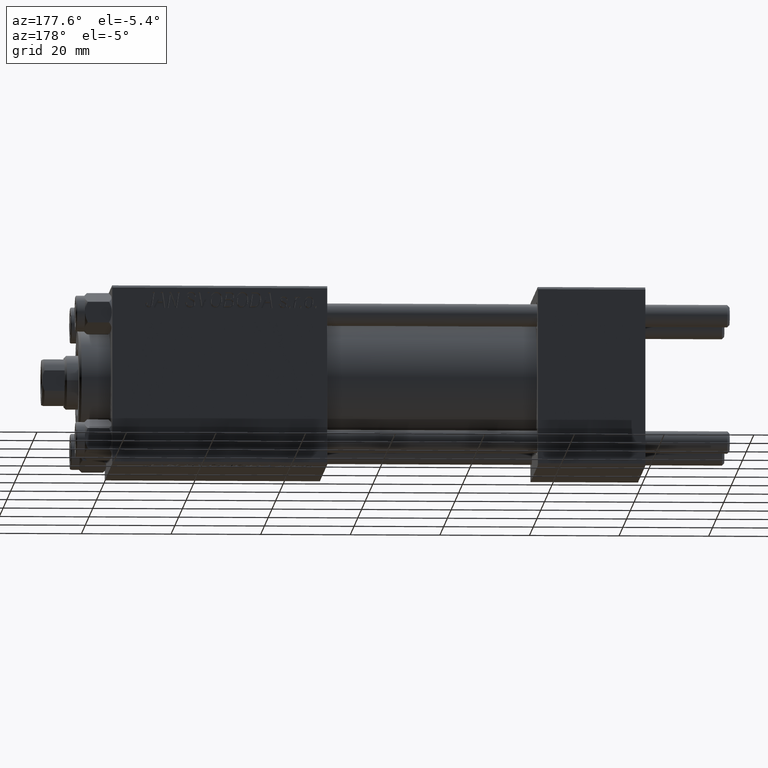
[diagram: clean part render]
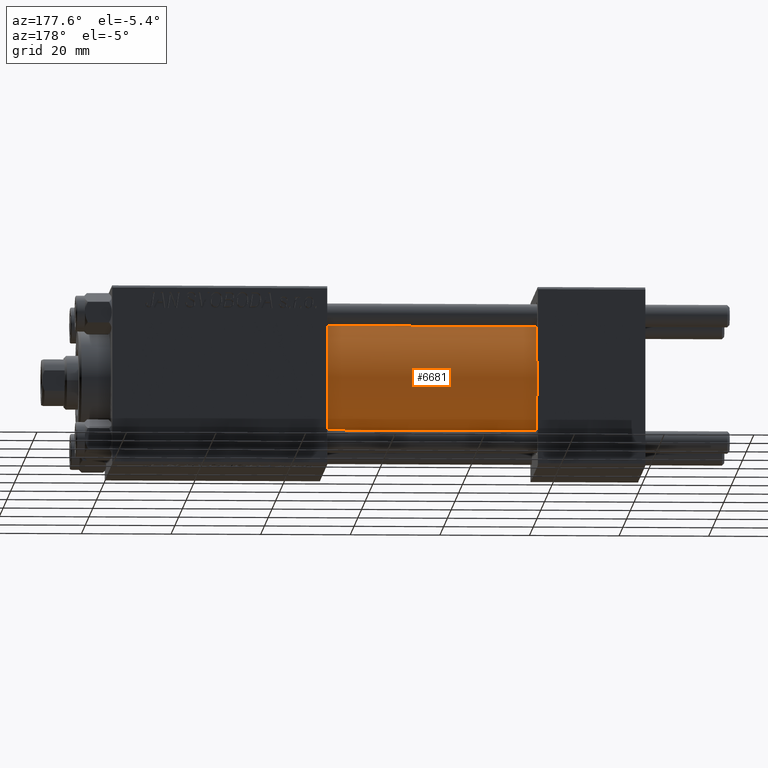
[diagram: same view with one face highlighted and labeled with its STEP entity id]
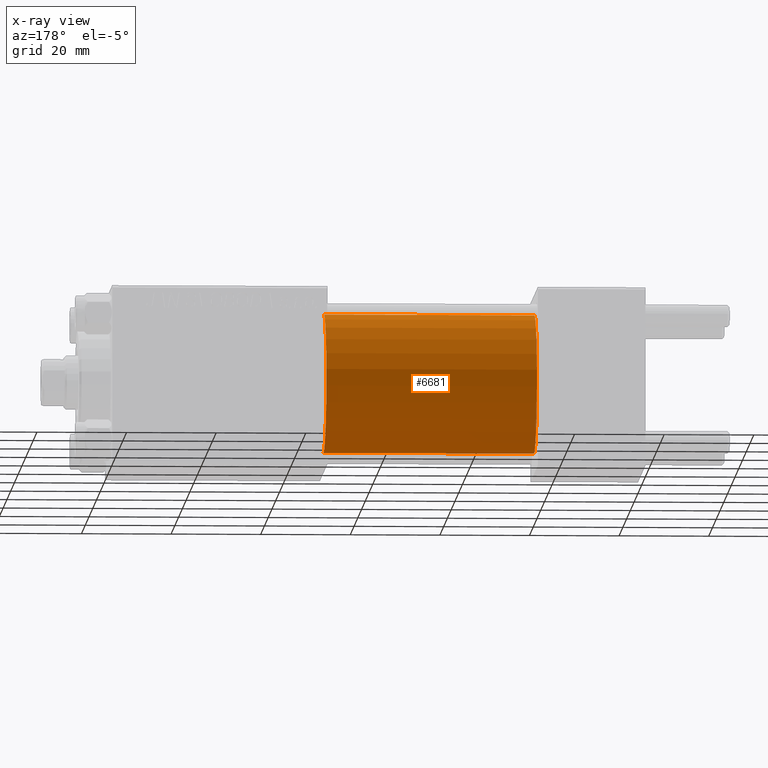
[diagram: x-ray of the same camera — body ghosted, the highlighted face saturated]
A machine part, auxiliary view. The second image highlights one B-rep face of the part: STEP entity #6681.
The next image is the same camera in x-ray: the body ghosted, the highlighted face saturated — about 0% of this face is hidden behind the body in this view.
In plain terms, the highlighted cylindrical surface (partial cylindrical patch) has radius 15.5 mm, axis along (-1, -0, -0).
Its self-contained STEP definition (entity closure, byte-faithful):
#1631 = AXIS2_PLACEMENT_3D ( 'NONE', #2186, #32907, #25124 ) ;
#2186 = CARTESIAN_POINT ( 'NONE',  ( 71.00000000000001421, 0.000000000000000000, 0.000000000000000000 ) ) ;
#3110 = EDGE_CURVE ( 'NONE', #13412, #15939, #40439, .T. ) ;
#4895 = VERTEX_POINT ( 'NONE', #43083 ) ;
#6626 = CARTESIAN_POINT ( 'NONE',  ( 71.00000000000001421, 1.898202538678397557E-15, -15.50000000000000000 ) ) ;
#6681 = ADVANCED_FACE ( 'NONE', ( #45344 ), #48624, .T. ) ;
#7825 = ORIENTED_EDGE ( 'NONE', *, *, #3110, .T. ) ;
#7907 = ORIENTED_EDGE ( 'NONE', *, *, #40568, .F. ) ;
#9519 = EDGE_LOOP ( 'NONE', ( #7907, #7825, #26632, #11588 ) ) ;
#10073 = LINE ( 'NONE', #21655, #29849 ) ;
#11588 = ORIENTED_EDGE ( 'NONE', *, *, #42326, .F. ) ;
#13412 = VERTEX_POINT ( 'NONE', #42934 ) ;
#15939 = VERTEX_POINT ( 'NONE', #42783 ) ;
#18305 = DIRECTION ( 'NONE',  ( 0.000000000000000000, 0.000000000000000000, 1.000000000000000000 ) ) ;
#21655 = CARTESIAN_POINT ( 'NONE',  ( 71.00000000000001421, 0.000000000000000000, 15.50000000000000000 ) ) ;
#21994 = DIRECTION ( 'NONE',  ( -1.000000000000000000, -0.000000000000000000, -0.000000000000000000 ) ) ;
#22091 = DIRECTION ( 'NONE',  ( 1.000000000000000000, 0.000000000000000000, 0.000000000000000000 ) ) ;
#22180 = DIRECTION ( 'NONE',  ( -1.000000000000000000, -0.000000000000000000, -0.000000000000000000 ) ) ;
#23352 = CIRCLE ( 'NONE', #1631, 15.50000000000000000 ) ;
#25124 = DIRECTION ( 'NONE',  ( 0.000000000000000000, 0.000000000000000000, -1.000000000000000000 ) ) ;
#26632 = ORIENTED_EDGE ( 'NONE', *, *, #45634, .T. ) ;
#26777 = AXIS2_PLACEMENT_3D ( 'NONE', #48285, #22091, #18305 ) ;
#27541 = CARTESIAN_POINT ( 'NONE',  ( 71.00000000000001421, 0.000000000000000000, 15.50000000000000000 ) ) ;
#29849 = VECTOR ( 'NONE', #37012, 1000.000000000000000 ) ;
#32907 = DIRECTION ( 'NONE',  ( 1.000000000000000000, 0.000000000000000000, 0.000000000000000000 ) ) ;
#33257 = CARTESIAN_POINT ( 'NONE',  ( 71.00000000000001421, 0.000000000000000000, 0.000000000000000000 ) ) ;
#33715 = VERTEX_POINT ( 'NONE', #27541 ) ;
#35538 = VECTOR ( 'NONE', #21994, 1000.000000000000000 ) ;
#35589 = CIRCLE ( 'NONE', #26777, 15.50000000000000000 ) ;
#37012 = DIRECTION ( 'NONE',  ( -1.000000000000000000, -0.000000000000000000, -0.000000000000000000 ) ) ;
#37264 = AXIS2_PLACEMENT_3D ( 'NONE', #33257, #22180, #48133 ) ;
#40439 = LINE ( 'NONE', #6626, #35538 ) ;
#40568 = EDGE_CURVE ( 'NONE', #13412, #33715, #23352, .T. ) ;
#42326 = EDGE_CURVE ( 'NONE', #33715, #4895, #10073, .T. ) ;
#42783 = CARTESIAN_POINT ( 'NONE',  ( 24.00000000000000000, 1.898202538678397557E-15, -15.50000000000000000 ) ) ;
#42934 = CARTESIAN_POINT ( 'NONE',  ( 71.00000000000001421, 1.898202538678397557E-15, -15.50000000000000000 ) ) ;
#43083 = CARTESIAN_POINT ( 'NONE',  ( 24.00000000000000000, 0.000000000000000000, 15.50000000000000000 ) ) ;
#45344 = FACE_OUTER_BOUND ( 'NONE', #9519, .T. ) ;
#45634 = EDGE_CURVE ( 'NONE', #15939, #4895, #35589, .T. ) ;
#48133 = DIRECTION ( 'NONE',  ( 0.000000000000000000, 0.000000000000000000, 1.000000000000000000 ) ) ;
#48285 = CARTESIAN_POINT ( 'NONE',  ( 24.00000000000000000, 0.000000000000000000, 0.000000000000000000 ) ) ;
#48624 = CYLINDRICAL_SURFACE ( 'NONE', #37264, 15.50000000000000000 ) ;